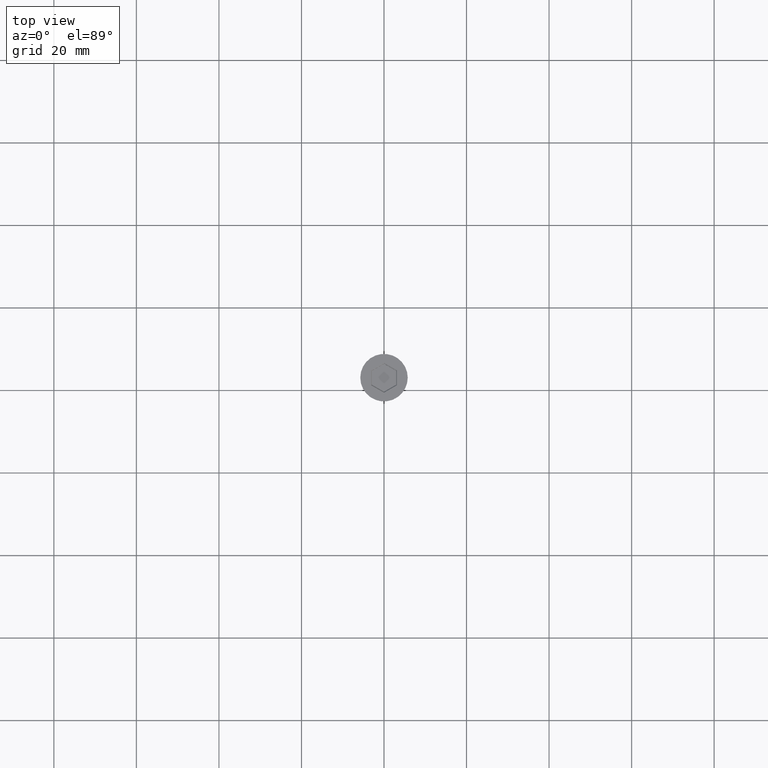
[diagram: clean part render]
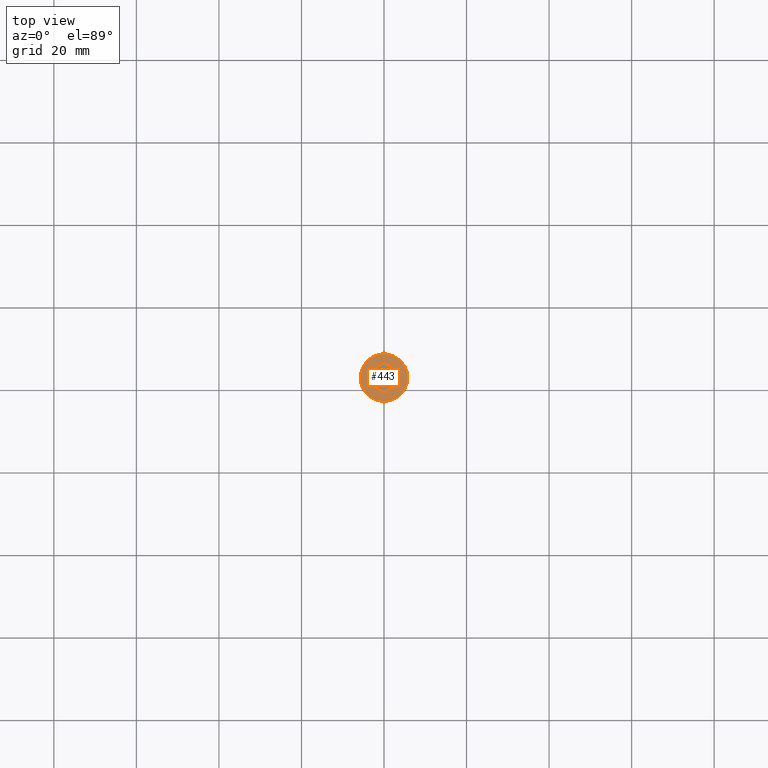
[diagram: same view with one face highlighted and labeled with its STEP entity id]
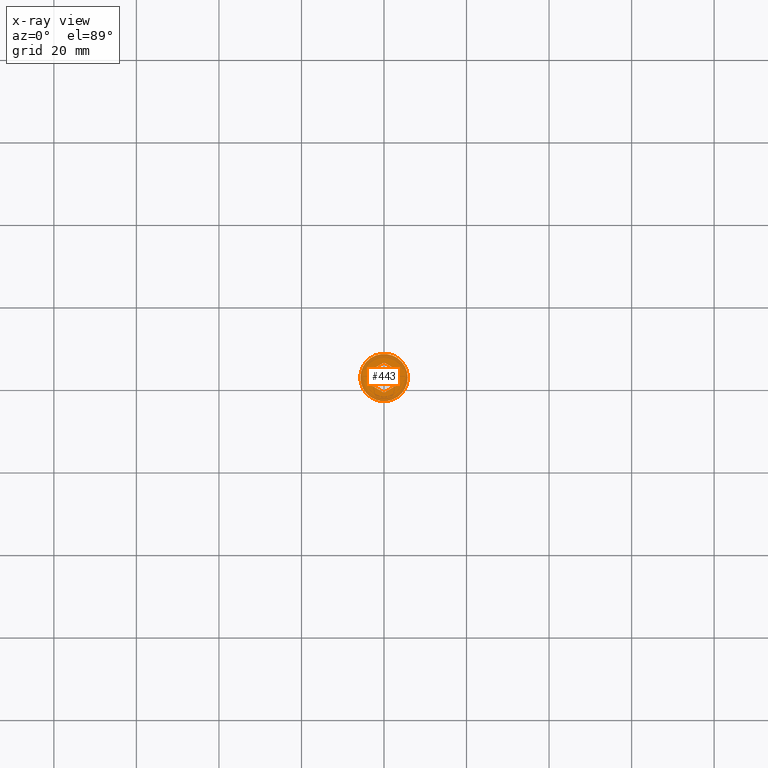
[diagram: x-ray of the same camera — body ghosted, the highlighted face saturated]
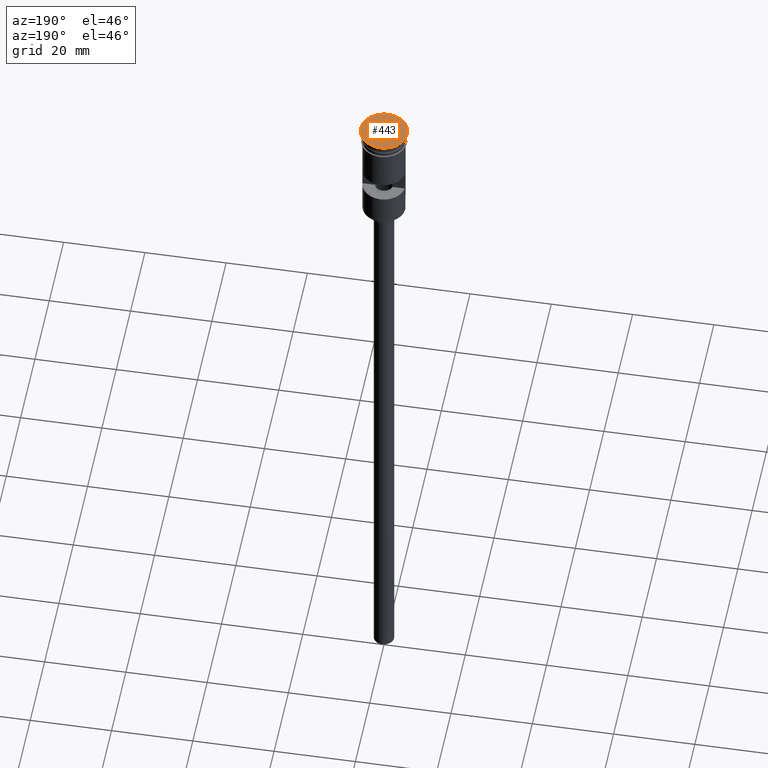
[diagram: same view with one face highlighted and labeled with its STEP entity id]
A machine part, top view. The second image highlights one B-rep face of the part: STEP entity #443.
The next image is the same camera in x-ray: the body ghosted, the highlighted face saturated — about 0% of this face is hidden behind the body in this view.
A second angle (auxiliary view) of the same face is appended — the face is thin or edge-on in the first view.
In plain terms, the highlighted planar face has unit normal (0, -0, 1).
Its self-contained STEP definition (entity closure, byte-faithful):
#43 = EDGE_CURVE ( 'NONE', #447, #1349, #1176, .T. ) ;
#87 = CARTESIAN_POINT ( 'NONE',  ( 5.750000000000000000, 0.000000000000000000, 0.000000000000000000 ) ) ;
#88 = VERTEX_POINT ( 'NONE', #106 ) ;
#99 = DIRECTION ( 'NONE',  ( 1.000000000000000000, 0.000000000000000000, 0.000000000000000000 ) ) ;
#106 = CARTESIAN_POINT ( 'NONE',  ( -3.149999999999978595, -1.818653347947308818, 0.000000000000000000 ) ) ;
#124 = CARTESIAN_POINT ( 'NONE',  ( 3.149999999999978151, -1.818653347947309484, 0.000000000000000000 ) ) ;
#128 = VECTOR ( 'NONE', #1043, 1000.000000000000000 ) ;
#149 = VERTEX_POINT ( 'NONE', #537 ) ;
#182 = VECTOR ( 'NONE', #1250, 1000.000000000000114 ) ;
#200 = CARTESIAN_POINT ( 'NONE',  ( -3.095704393061636416E-16, 3.637306695894617192, 0.000000000000000000 ) ) ;
#251 = ORIENTED_EDGE ( 'NONE', *, *, #709, .T. ) ;
#267 = DIRECTION ( 'NONE',  ( -0.8660254037844385966, 0.5000000000000001110, 0.000000000000000000 ) ) ;
#283 = ORIENTED_EDGE ( 'NONE', *, *, #1354, .T. ) ;
#318 = DIRECTION ( 'NONE',  ( 1.000000000000000000, 0.000000000000000000, 0.000000000000000000 ) ) ;
#329 = ORIENTED_EDGE ( 'NONE', *, *, #732, .T. ) ;
#425 = DIRECTION ( 'NONE',  ( 0.8660254037844387076, -0.4999999999999998890, 0.000000000000000000 ) ) ;
#441 = CARTESIAN_POINT ( 'NONE',  ( 0.09999999999998882005, -3.579571668975661591, 0.000000000000000000 ) ) ;
#443 = ADVANCED_FACE ( 'NONE', ( #953, #807 ), #1444, .T. ) ;
#447 = VERTEX_POINT ( 'NONE', #200 ) ;
#482 = ORIENTED_EDGE ( 'NONE', *, *, #802, .T. ) ;
#537 = CARTESIAN_POINT ( 'NONE',  ( -5.750000000000000000, 7.041719095097280880E-16, 0.000000000000000000 ) ) ;
#549 = LINE ( 'NONE', #441, #128 ) ;
#574 = CARTESIAN_POINT ( 'NONE',  ( 3.149999999999978151, -1.703183294109396284, 0.000000000000000000 ) ) ;
#619 = CARTESIAN_POINT ( 'NONE',  ( 0.000000000000000000, 0.000000000000000000, 0.000000000000000000 ) ) ;
#687 = CARTESIAN_POINT ( 'NONE',  ( 0.000000000000000000, 0.000000000000000000, 0.000000000000000000 ) ) ;
#692 = CARTESIAN_POINT ( 'NONE',  ( -3.149999999999978595, 1.703183294109395840, 0.000000000000000000 ) ) ;
#695 = CIRCLE ( 'NONE', #1423, 5.750000000000000000 ) ;
#709 = EDGE_CURVE ( 'NONE', #149, #1410, #695, .T. ) ;
#716 = DIRECTION ( 'NONE',  ( 0.000000000000000000, 1.000000000000000000, 0.000000000000000000 ) ) ;
#720 = CARTESIAN_POINT ( 'NONE',  ( 0.000000000000000000, 0.000000000000000000, 0.000000000000000000 ) ) ;
#725 = CARTESIAN_POINT ( 'NONE',  ( -4.546348829811041408E-16, -3.637306695894617636, 0.000000000000000000 ) ) ;
#732 = EDGE_CURVE ( 'NONE', #1410, #149, #1372, .T. ) ;
#740 = ORIENTED_EDGE ( 'NONE', *, *, #1141, .T. ) ;
#756 = DIRECTION ( 'NONE',  ( -0.000000000000000000, -0.000000000000000000, 1.000000000000000000 ) ) ;
#802 = EDGE_CURVE ( 'NONE', #1442, #1419, #549, .T. ) ;
#807 = FACE_OUTER_BOUND ( 'NONE', #1214, .T. ) ;
#844 = CARTESIAN_POINT ( 'NONE',  ( 3.149999999999979039, 1.818653347947308596, 0.000000000000000000 ) ) ;
#896 = EDGE_CURVE ( 'NONE', #88, #1234, #1450, .T. ) ;
#938 = LINE ( 'NONE', #574, #1481 ) ;
#953 = FACE_BOUND ( 'NONE', #1379, .T. ) ;
#960 = CARTESIAN_POINT ( 'NONE',  ( 3.049999999999990052, 1.876388374866264863, 0.000000000000000000 ) ) ;
#966 = DIRECTION ( 'NONE',  ( -0.000000000000000000, -0.000000000000000000, 1.000000000000000000 ) ) ;
#979 = VECTOR ( 'NONE', #425, 1000.000000000000000 ) ;
#1021 = CARTESIAN_POINT ( 'NONE',  ( -0.09999999999998934741, 3.579571668975661147, 0.000000000000000000 ) ) ;
#1022 = EDGE_CURVE ( 'NONE', #1419, #88, #1459, .T. ) ;
#1041 = ORIENTED_EDGE ( 'NONE', *, *, #1022, .T. ) ;
#1043 = DIRECTION ( 'NONE',  ( -0.8660254037844387076, -0.4999999999999998890, 0.000000000000000000 ) ) ;
#1048 = CARTESIAN_POINT ( 'NONE',  ( -3.149999999999978595, 1.818653347947308374, 0.000000000000000000 ) ) ;
#1072 = DIRECTION ( 'NONE',  ( 0.000000000000000000, -0.000000000000000000, 1.000000000000000000 ) ) ;
#1113 = ORIENTED_EDGE ( 'NONE', *, *, #896, .T. ) ;
#1141 = EDGE_CURVE ( 'NONE', #1234, #447, #1505, .T. ) ;
#1176 = LINE ( 'NONE', #960, #979 ) ;
#1185 = ORIENTED_EDGE ( 'NONE', *, *, #43, .T. ) ;
#1214 = EDGE_LOOP ( 'NONE', ( #329, #251 ) ) ;
#1216 = DIRECTION ( 'NONE',  ( -2.546295930062981593E-16, -1.000000000000000000, 0.000000000000000000 ) ) ;
#1221 = VECTOR ( 'NONE', #267, 1000.000000000000114 ) ;
#1222 = DIRECTION ( 'NONE',  ( 1.000000000000000000, 0.000000000000000000, 0.000000000000000000 ) ) ;
#1234 = VERTEX_POINT ( 'NONE', #1048 ) ;
#1250 = DIRECTION ( 'NONE',  ( 0.8660254037844385966, 0.5000000000000001110, 0.000000000000000000 ) ) ;
#1332 = CARTESIAN_POINT ( 'NONE',  ( -3.049999999999989608, -1.876388374866265085, 0.000000000000000000 ) ) ;
#1349 = VERTEX_POINT ( 'NONE', #844 ) ;
#1354 = EDGE_CURVE ( 'NONE', #1349, #1442, #938, .T. ) ;
#1372 = CIRCLE ( 'NONE', #1451, 5.750000000000000000 ) ;
#1379 = EDGE_LOOP ( 'NONE', ( #1041, #1113, #740, #1185, #283, #482 ) ) ;
#1410 = VERTEX_POINT ( 'NONE', #87 ) ;
#1419 = VERTEX_POINT ( 'NONE', #725 ) ;
#1423 = AXIS2_PLACEMENT_3D ( 'NONE', #619, #756, #99 ) ;
#1426 = VECTOR ( 'NONE', #716, 1000.000000000000000 ) ;
#1442 = VERTEX_POINT ( 'NONE', #124 ) ;
#1444 = PLANE ( 'NONE',  #1587 ) ;
#1450 = LINE ( 'NONE', #692, #1426 ) ;
#1451 = AXIS2_PLACEMENT_3D ( 'NONE', #720, #966, #1222 ) ;
#1459 = LINE ( 'NONE', #1332, #1221 ) ;
#1481 = VECTOR ( 'NONE', #1216, 1000.000000000000000 ) ;
#1505 = LINE ( 'NONE', #1021, #182 ) ;
#1587 = AXIS2_PLACEMENT_3D ( 'NONE', #687, #1072, #318 ) ;